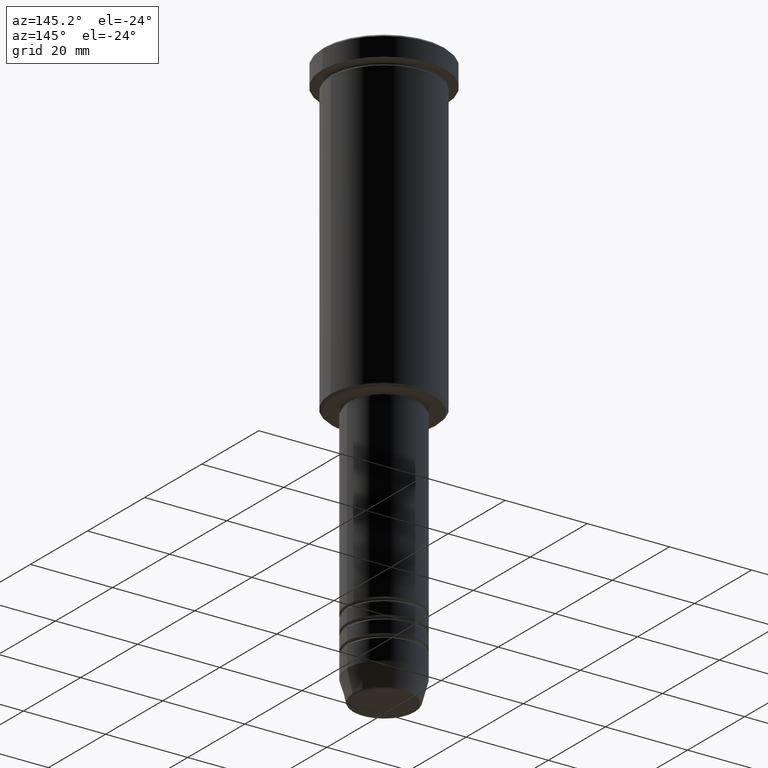
[diagram: clean part render]
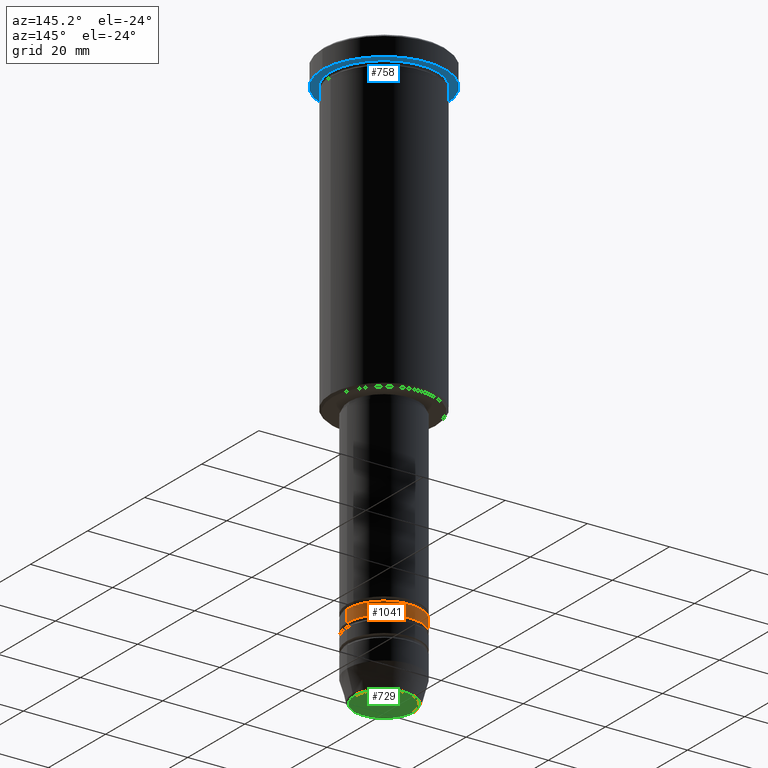
[diagram: same view with three faces highlighted in distinct colors, each labeled with its STEP entity id]
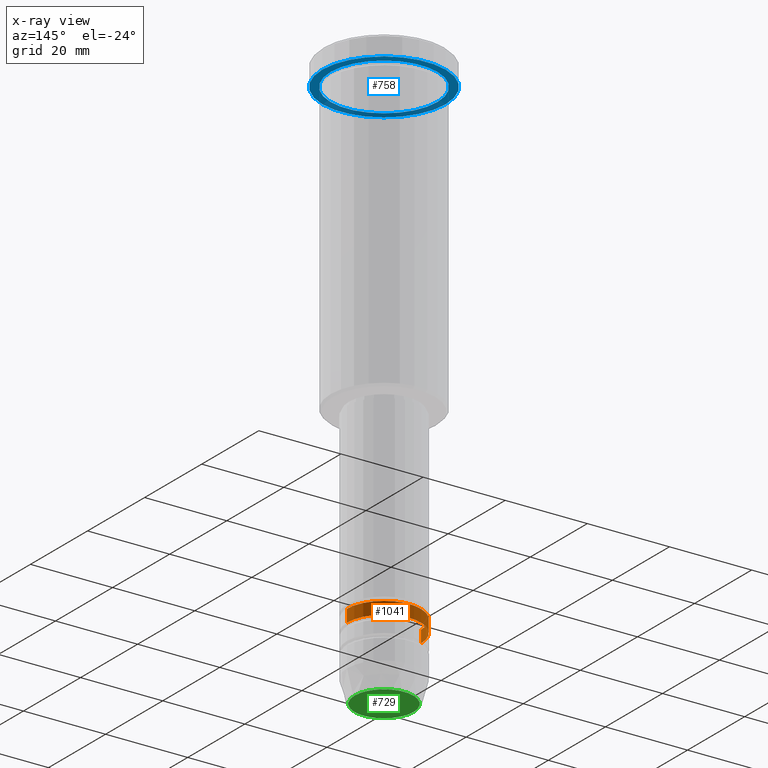
[diagram: x-ray of the same camera — body ghosted, the three highlighted faces saturated]
A machine part, auxiliary view with three faces highlighted in distinct colors.
The next image is the same camera in x-ray (body ghosted, the three faces saturated) — at least one of them is partly hidden behind the body in this view.
Their STEP definitions:

[orange] entity #1041 — the highlighted cylindrical surface (partial cylindrical patch) has radius 9 mm, axis along (-0, -0, 1).
#34 = CARTESIAN_POINT ( 'NONE',  ( 9.000000000000001776, 0.000000000000000000, 0.000000000000000000 ) ) ;
#82 = CARTESIAN_POINT ( 'NONE',  ( 9.000000000000000000, 0.000000000000000000, -121.5000000000000000 ) ) ;
#83 = EDGE_CURVE ( 'NONE', #692, #1154, #137, .T. ) ;
#137 = CIRCLE ( 'NONE', #326, 9.000000000000001776 ) ;
#181 = CARTESIAN_POINT ( 'NONE',  ( -9.000000000000001776, 1.102182119232617911E-15, 0.000000000000000000 ) ) ;
#201 = CARTESIAN_POINT ( 'NONE',  ( -9.000000000000001776, 1.102182119232617911E-15, -124.5000000000000000 ) ) ;
#203 = CARTESIAN_POINT ( 'NONE',  ( 9.000000000000001776, 0.000000000000000000, -124.5000000000000000 ) ) ;
#245 = FACE_OUTER_BOUND ( 'NONE', #709, .T. ) ;
#285 = ORIENTED_EDGE ( 'NONE', *, *, #464, .F. ) ;
#325 = CARTESIAN_POINT ( 'NONE',  ( -9.000000000000000000, 1.102182119232617714E-15, -121.5000000000000000 ) ) ;
#326 = AXIS2_PLACEMENT_3D ( 'NONE', #366, #911, #539 ) ;
#341 = VECTOR ( 'NONE', #598, 1000.000000000000000 ) ;
#366 = CARTESIAN_POINT ( 'NONE',  ( 0.000000000000000000, 0.000000000000000000, -124.5000000000000000 ) ) ;
#406 = VERTEX_POINT ( 'NONE', #325 ) ;
#464 = EDGE_CURVE ( 'NONE', #610, #406, #933, .T. ) ;
#513 = CARTESIAN_POINT ( 'NONE',  ( 0.000000000000000000, 0.000000000000000000, -121.5000000000000000 ) ) ;
#520 = DIRECTION ( 'NONE',  ( -0.000000000000000000, -0.000000000000000000, 1.000000000000000000 ) ) ;
#529 = ORIENTED_EDGE ( 'NONE', *, *, #621, .T. ) ;
#539 = DIRECTION ( 'NONE',  ( 1.000000000000000000, 0.000000000000000000, 0.000000000000000000 ) ) ;
#598 = DIRECTION ( 'NONE',  ( -0.000000000000000000, -0.000000000000000000, 1.000000000000000000 ) ) ;
#610 = VERTEX_POINT ( 'NONE', #82 ) ;
#621 = EDGE_CURVE ( 'NONE', #1154, #406, #798, .T. ) ;
#692 = VERTEX_POINT ( 'NONE', #203 ) ;
#709 = EDGE_LOOP ( 'NONE', ( #1032, #529, #285, #1114 ) ) ;
#723 = DIRECTION ( 'NONE',  ( 1.000000000000000000, 0.000000000000000000, 0.000000000000000000 ) ) ;
#782 = DIRECTION ( 'NONE',  ( -0.000000000000000000, -0.000000000000000000, 1.000000000000000000 ) ) ;
#798 = LINE ( 'NONE', #181, #1029 ) ;
#816 = CARTESIAN_POINT ( 'NONE',  ( 0.000000000000000000, 0.000000000000000000, 0.000000000000000000 ) ) ;
#880 = LINE ( 'NONE', #34, #341 ) ;
#886 = EDGE_CURVE ( 'NONE', #692, #610, #880, .T. ) ;
#889 = DIRECTION ( 'NONE',  ( 1.000000000000000000, 0.000000000000000000, 0.000000000000000000 ) ) ;
#911 = DIRECTION ( 'NONE',  ( -0.000000000000000000, -0.000000000000000000, 1.000000000000000000 ) ) ;
#933 = CIRCLE ( 'NONE', #1083, 9.000000000000000000 ) ;
#1029 = VECTOR ( 'NONE', #520, 1000.000000000000000 ) ;
#1032 = ORIENTED_EDGE ( 'NONE', *, *, #83, .T. ) ;
#1041 = ADVANCED_FACE ( 'NONE', ( #245 ), #1077, .T. ) ;
#1077 = CYLINDRICAL_SURFACE ( 'NONE', #1086, 9.000000000000001776 ) ;
#1083 = AXIS2_PLACEMENT_3D ( 'NONE', #513, #782, #889 ) ;
#1086 = AXIS2_PLACEMENT_3D ( 'NONE', #816, #1175, #723 ) ;
#1114 = ORIENTED_EDGE ( 'NONE', *, *, #886, .F. ) ;
#1154 = VERTEX_POINT ( 'NONE', #201 ) ;
#1175 = DIRECTION ( 'NONE',  ( -0.000000000000000000, -0.000000000000000000, 1.000000000000000000 ) ) ;

[blue] entity #758 — the highlighted planar face has unit normal (0, 0, -1).
#35 = AXIS2_PLACEMENT_3D ( 'NONE', #943, #297, #639 ) ;
#106 = DIRECTION ( 'NONE',  ( -1.000000000000000000, 0.000000000000000000, -0.000000000000000000 ) ) ;
#179 = EDGE_LOOP ( 'NONE', ( #848, #600 ) ) ;
#212 = CARTESIAN_POINT ( 'NONE',  ( -15.00000000000000000, 1.836970198721029589E-15, -4.999999999999999112 ) ) ;
#297 = DIRECTION ( 'NONE',  ( -0.000000000000000000, -0.000000000000000000, 1.000000000000000000 ) ) ;
#309 = VERTEX_POINT ( 'NONE', #212 ) ;
#329 = DIRECTION ( 'NONE',  ( -0.000000000000000000, -0.000000000000000000, 1.000000000000000000 ) ) ;
#376 = AXIS2_PLACEMENT_3D ( 'NONE', #855, #484, #106 ) ;
#447 = DIRECTION ( 'NONE',  ( -1.000000000000000000, 0.000000000000000000, 0.000000000000000000 ) ) ;
#468 = CARTESIAN_POINT ( 'NONE',  ( 15.00000000000000000, 0.000000000000000000, -4.999999999999999112 ) ) ;
#484 = DIRECTION ( 'NONE',  ( 0.000000000000000000, 0.000000000000000000, -1.000000000000000000 ) ) ;
#551 = CIRCLE ( 'NONE', #918, 13.00000000000000000 ) ;
#554 = EDGE_CURVE ( 'NONE', #1063, #1064, #883, .T. ) ;
#582 = DIRECTION ( 'NONE',  ( -1.000000000000000000, 0.000000000000000000, 0.000000000000000000 ) ) ;
#600 = ORIENTED_EDGE ( 'NONE', *, *, #1069, .F. ) ;
#608 = CARTESIAN_POINT ( 'NONE',  ( -13.00000000000000000, 0.000000000000000000, -4.999999999999999112 ) ) ;
#629 = CARTESIAN_POINT ( 'NONE',  ( 13.00000000000000000, 1.592040838891559095E-15, -4.999999999999999112 ) ) ;
#639 = DIRECTION ( 'NONE',  ( 1.000000000000000000, 0.000000000000000000, 0.000000000000000000 ) ) ;
#660 = AXIS2_PLACEMENT_3D ( 'NONE', #1073, #1097, #447 ) ;
#703 = AXIS2_PLACEMENT_3D ( 'NONE', #981, #1156, #1002 ) ;
#727 = ORIENTED_EDGE ( 'NONE', *, *, #930, .T. ) ;
#748 = PLANE ( 'NONE',  #376 ) ;
#758 = ADVANCED_FACE ( 'NONE', ( #1119, #841 ), #748, .T. ) ;
#796 = ORIENTED_EDGE ( 'NONE', *, *, #554, .T. ) ;
#841 = FACE_OUTER_BOUND ( 'NONE', #179, .T. ) ;
#848 = ORIENTED_EDGE ( 'NONE', *, *, #1180, .F. ) ;
#855 = CARTESIAN_POINT ( 'NONE',  ( 0.000000000000000000, 15.00000000000000000, -4.999999999999999112 ) ) ;
#883 = CIRCLE ( 'NONE', #660, 13.00000000000000000 ) ;
#918 = AXIS2_PLACEMENT_3D ( 'NONE', #1148, #329, #582 ) ;
#930 = EDGE_CURVE ( 'NONE', #1064, #1063, #551, .T. ) ;
#943 = CARTESIAN_POINT ( 'NONE',  ( 0.000000000000000000, 0.000000000000000000, -4.999999999999999112 ) ) ;
#964 = EDGE_LOOP ( 'NONE', ( #796, #727 ) ) ;
#977 = CIRCLE ( 'NONE', #703, 15.00000000000000000 ) ;
#979 = CIRCLE ( 'NONE', #35, 15.00000000000000000 ) ;
#981 = CARTESIAN_POINT ( 'NONE',  ( 0.000000000000000000, 0.000000000000000000, -4.999999999999999112 ) ) ;
#1002 = DIRECTION ( 'NONE',  ( 1.000000000000000000, 0.000000000000000000, 0.000000000000000000 ) ) ;
#1063 = VERTEX_POINT ( 'NONE', #608 ) ;
#1064 = VERTEX_POINT ( 'NONE', #629 ) ;
#1069 = EDGE_CURVE ( 'NONE', #309, #1117, #977, .T. ) ;
#1073 = CARTESIAN_POINT ( 'NONE',  ( 0.000000000000000000, 0.000000000000000000, -4.999999999999999112 ) ) ;
#1097 = DIRECTION ( 'NONE',  ( -0.000000000000000000, -0.000000000000000000, 1.000000000000000000 ) ) ;
#1117 = VERTEX_POINT ( 'NONE', #468 ) ;
#1119 = FACE_BOUND ( 'NONE', #964, .T. ) ;
#1148 = CARTESIAN_POINT ( 'NONE',  ( 0.000000000000000000, 0.000000000000000000, -4.999999999999999112 ) ) ;
#1156 = DIRECTION ( 'NONE',  ( -0.000000000000000000, -0.000000000000000000, 1.000000000000000000 ) ) ;
#1180 = EDGE_CURVE ( 'NONE', #1117, #309, #979, .T. ) ;

[green] entity #729 — the highlighted planar face has unit normal (0, -0, 1).
#20 = PLANE ( 'NONE',  #320 ) ;
#97 = DIRECTION ( 'NONE',  ( 0.000000000000000000, 0.000000000000000000, -1.000000000000000000 ) ) ;
#100 = DIRECTION ( 'NONE',  ( 0.000000000000000000, 0.000000000000000000, -1.000000000000000000 ) ) ;
#121 = EDGE_CURVE ( 'NONE', #463, #633, #423, .T. ) ;
#213 = AXIS2_PLACEMENT_3D ( 'NONE', #456, #97, #626 ) ;
#306 = DIRECTION ( 'NONE',  ( 1.000000000000000000, 0.000000000000000000, 0.000000000000000000 ) ) ;
#320 = AXIS2_PLACEMENT_3D ( 'NONE', #755, #659, #306 ) ;
#410 = CARTESIAN_POINT ( 'NONE',  ( -7.142615947639344043, 9.042911250660033433E-16, -140.0000000000000000 ) ) ;
#423 = CIRCLE ( 'NONE', #213, 7.142615947639344043 ) ;
#456 = CARTESIAN_POINT ( 'NONE',  ( 0.000000000000000000, 0.000000000000000000, -140.0000000000000000 ) ) ;
#463 = VERTEX_POINT ( 'NONE', #410 ) ;
#474 = AXIS2_PLACEMENT_3D ( 'NONE', #656, #100, #728 ) ;
#626 = DIRECTION ( 'NONE',  ( 1.000000000000000000, 0.000000000000000000, 0.000000000000000000 ) ) ;
#633 = VERTEX_POINT ( 'NONE', #1176 ) ;
#637 = ORIENTED_EDGE ( 'NONE', *, *, #1096, .T. ) ;
#656 = CARTESIAN_POINT ( 'NONE',  ( 0.000000000000000000, 0.000000000000000000, -140.0000000000000000 ) ) ;
#659 = DIRECTION ( 'NONE',  ( 0.000000000000000000, -0.000000000000000000, 1.000000000000000000 ) ) ;
#728 = DIRECTION ( 'NONE',  ( 1.000000000000000000, 0.000000000000000000, 0.000000000000000000 ) ) ;
#729 = ADVANCED_FACE ( 'NONE', ( #733 ), #20, .F. ) ;
#733 = FACE_OUTER_BOUND ( 'NONE', #1149, .T. ) ;
#755 = CARTESIAN_POINT ( 'NONE',  ( 0.000000000000000000, 0.000000000000000000, -140.0000000000000000 ) ) ;
#907 = ORIENTED_EDGE ( 'NONE', *, *, #121, .T. ) ;
#1051 = CIRCLE ( 'NONE', #474, 7.142615947639344043 ) ;
#1096 = EDGE_CURVE ( 'NONE', #633, #463, #1051, .T. ) ;
#1149 = EDGE_LOOP ( 'NONE', ( #637, #907 ) ) ;
#1176 = CARTESIAN_POINT ( 'NONE',  ( 7.142615947639344043, 0.000000000000000000, -140.0000000000000000 ) ) ;